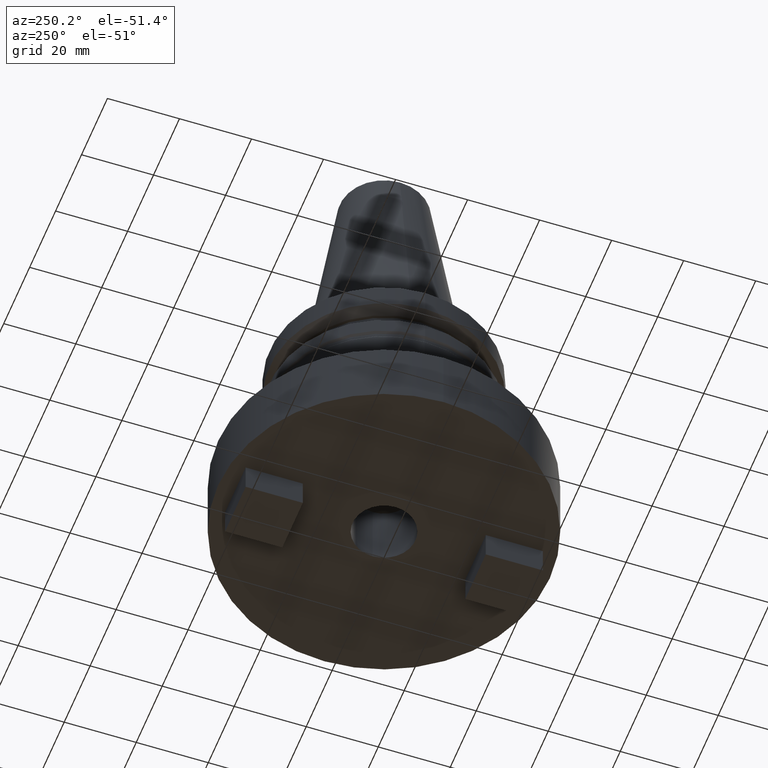
[diagram: clean part render]
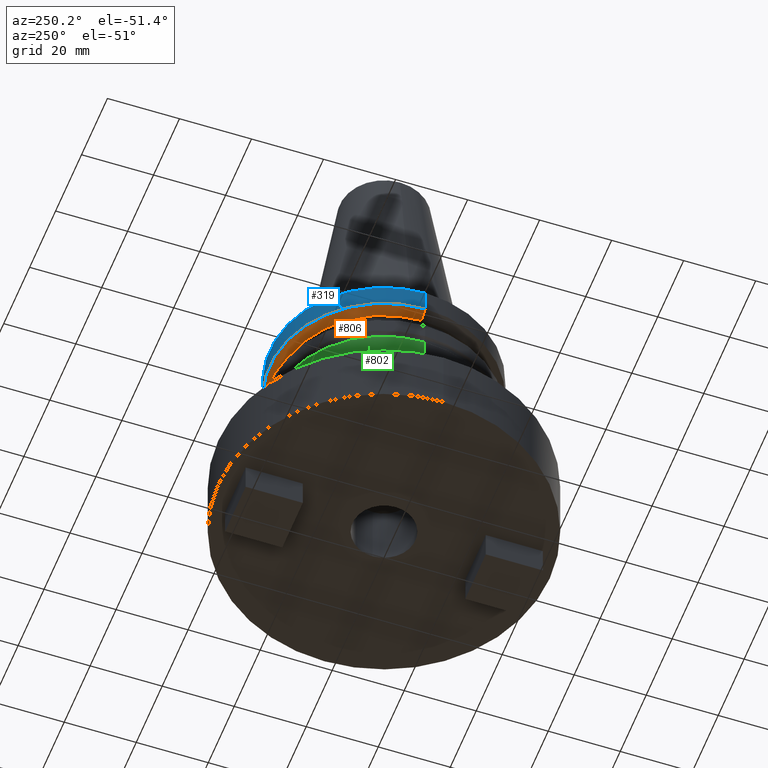
[diagram: same view with three faces highlighted in distinct colors, each labeled with its STEP entity id]
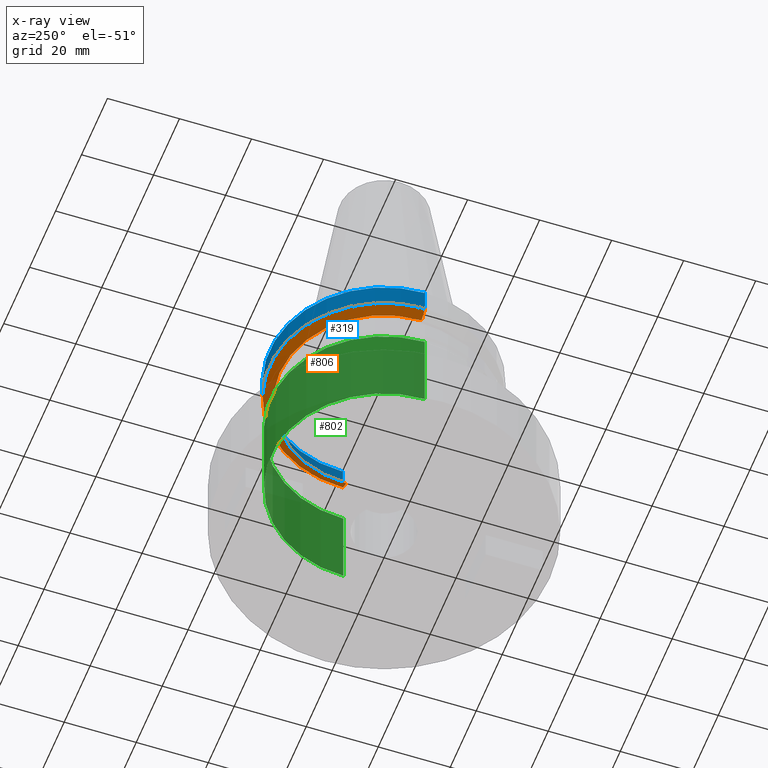
[diagram: x-ray of the same camera — body ghosted, the three highlighted faces saturated]
A machine part, auxiliary view with three faces highlighted in distinct colors.
The next image is the same camera in x-ray (body ghosted, the three faces saturated) — at least one of them is partly hidden behind the body in this view.
Their STEP definitions:

[orange] entity #806 — the highlighted conical surface has half-angle 60 deg.
#25 = ORIENTED_EDGE ( 'NONE', *, *, #1011, .F. ) ;
#44 = VERTEX_POINT ( 'NONE', #203 ) ;
#60 = ORIENTED_EDGE ( 'NONE', *, *, #727, .T. ) ;
#66 = VECTOR ( 'NONE', #826, 1000.000000000000000 ) ;
#104 = ORIENTED_EDGE ( 'NONE', *, *, #837, .T. ) ;
#160 = DIRECTION ( 'NONE',  ( -0.000000000000000000, -0.000000000000000000, 1.000000000000000000 ) ) ;
#177 = CARTESIAN_POINT ( 'NONE',  ( 28.97919780457007732, 0.000000000000000000, -9.205000000000005400 ) ) ;
#187 = CONICAL_SURFACE ( 'NONE', #303, 28.97919780457007732, 1.047197551196598297 ) ;
#203 = CARTESIAN_POINT ( 'NONE',  ( 28.97919780457007732, 0.000000000000000000, -9.205000000000005400 ) ) ;
#222 = CIRCLE ( 'NONE', #576, 28.97919780457007732 ) ;
#248 = DIRECTION ( 'NONE',  ( 1.000000000000000000, 0.000000000000000000, 0.000000000000000000 ) ) ;
#264 = VERTEX_POINT ( 'NONE', #589 ) ;
#303 = AXIS2_PLACEMENT_3D ( 'NONE', #911, #1014, #518 ) ;
#333 = EDGE_LOOP ( 'NONE', ( #104, #60, #773, #25 ) ) ;
#408 = EDGE_CURVE ( 'NONE', #264, #579, #752, .T. ) ;
#518 = DIRECTION ( 'NONE',  ( 1.000000000000000000, 0.000000000000000000, 0.000000000000000000 ) ) ;
#541 = DIRECTION ( 'NONE',  ( -0.000000000000000000, -0.000000000000000000, 1.000000000000000000 ) ) ;
#576 = AXIS2_PLACEMENT_3D ( 'NONE', #620, #541, #248 ) ;
#579 = VERTEX_POINT ( 'NONE', #1140 ) ;
#589 = CARTESIAN_POINT ( 'NONE',  ( 31.75000000000000000, 0.000000000000000000, -7.605276606597335842 ) ) ;
#619 = CARTESIAN_POINT ( 'NONE',  ( 0.000000000000000000, 0.000000000000000000, -7.605276606597335842 ) ) ;
#620 = CARTESIAN_POINT ( 'NONE',  ( 0.000000000000000000, 0.000000000000000000, -9.205000000000005400 ) ) ;
#691 = AXIS2_PLACEMENT_3D ( 'NONE', #619, #160, #905 ) ;
#714 = CARTESIAN_POINT ( 'NONE',  ( -28.97919780457007732, 3.718590885307660666E-15, -9.205000000000005400 ) ) ;
#727 = EDGE_CURVE ( 'NONE', #798, #579, #933, .T. ) ;
#746 = VECTOR ( 'NONE', #1015, 1000.000000000000000 ) ;
#752 = CIRCLE ( 'NONE', #691, 31.75000000000000000 ) ;
#773 = ORIENTED_EDGE ( 'NONE', *, *, #408, .F. ) ;
#798 = VERTEX_POINT ( 'NONE', #714 ) ;
#806 = ADVANCED_FACE ( 'NONE', ( #1093 ), #187, .T. ) ;
#826 = DIRECTION ( 'NONE',  ( 0.8660254037844389297, 0.000000000000000000, 0.4999999999999995004 ) ) ;
#837 = EDGE_CURVE ( 'NONE', #44, #798, #222, .T. ) ;
#905 = DIRECTION ( 'NONE',  ( 1.000000000000000000, 0.000000000000000000, 0.000000000000000000 ) ) ;
#911 = CARTESIAN_POINT ( 'NONE',  ( 0.000000000000000000, 0.000000000000000000, -9.205000000000005400 ) ) ;
#933 = LINE ( 'NONE', #1122, #746 ) ;
#1011 = EDGE_CURVE ( 'NONE', #44, #264, #1022, .T. ) ;
#1014 = DIRECTION ( 'NONE',  ( -0.000000000000000000, -0.000000000000000000, 1.000000000000000000 ) ) ;
#1015 = DIRECTION ( 'NONE',  ( -0.8660254037844389297, 1.060575238724907285E-16, 0.4999999999999995004 ) ) ;
#1022 = LINE ( 'NONE', #177, #66 ) ;
#1093 = FACE_OUTER_BOUND ( 'NONE', #333, .T. ) ;
#1122 = CARTESIAN_POINT ( 'NONE',  ( -28.97919780457007732, 3.548928183322474856E-15, -9.205000000000005400 ) ) ;
#1140 = CARTESIAN_POINT ( 'NONE',  ( -31.75000000000000000, 3.888253587292846476E-15, -7.605276606597335842 ) ) ;

[blue] entity #319 — the highlighted cylindrical surface (partial cylindrical patch) has radius 31.75 mm, axis along (-0, -0, 1).
#32 = CARTESIAN_POINT ( 'NONE',  ( 0.000000000000000000, 0.000000000000000000, -1.000000000000000888 ) ) ;
#49 = DIRECTION ( 'NONE',  ( -0.000000000000000000, -0.000000000000000000, 1.000000000000000000 ) ) ;
#65 = VERTEX_POINT ( 'NONE', #655 ) ;
#68 = FACE_OUTER_BOUND ( 'NONE', #1017, .T. ) ;
#149 = EDGE_CURVE ( 'NONE', #1050, #65, #689, .T. ) ;
#159 = EDGE_CURVE ( 'NONE', #579, #65, #989, .T. ) ;
#160 = DIRECTION ( 'NONE',  ( -0.000000000000000000, -0.000000000000000000, 1.000000000000000000 ) ) ;
#225 = VECTOR ( 'NONE', #420, 1000.000000000000000 ) ;
#264 = VERTEX_POINT ( 'NONE', #589 ) ;
#271 = CARTESIAN_POINT ( 'NONE',  ( 31.75000000000000000, 0.000000000000000000, -1.000000000000000888 ) ) ;
#302 = DIRECTION ( 'NONE',  ( 1.000000000000000000, 0.000000000000000000, 0.000000000000000000 ) ) ;
#304 = VECTOR ( 'NONE', #49, 1000.000000000000000 ) ;
#319 = ADVANCED_FACE ( 'NONE', ( #68 ), #1021, .T. ) ;
#345 = LINE ( 'NONE', #891, #304 ) ;
#408 = EDGE_CURVE ( 'NONE', #264, #579, #752, .T. ) ;
#413 = ORIENTED_EDGE ( 'NONE', *, *, #932, .F. ) ;
#420 = DIRECTION ( 'NONE',  ( -0.000000000000000000, -0.000000000000000000, 1.000000000000000000 ) ) ;
#502 = AXIS2_PLACEMENT_3D ( 'NONE', #32, #884, #302 ) ;
#514 = ORIENTED_EDGE ( 'NONE', *, *, #149, .F. ) ;
#525 = CARTESIAN_POINT ( 'NONE',  ( 0.000000000000000000, 0.000000000000000000, 68.25000000000000000 ) ) ;
#551 = DIRECTION ( 'NONE',  ( 1.000000000000000000, 0.000000000000000000, 0.000000000000000000 ) ) ;
#579 = VERTEX_POINT ( 'NONE', #1140 ) ;
#587 = ORIENTED_EDGE ( 'NONE', *, *, #159, .T. ) ;
#589 = CARTESIAN_POINT ( 'NONE',  ( 31.75000000000000000, 0.000000000000000000, -7.605276606597335842 ) ) ;
#619 = CARTESIAN_POINT ( 'NONE',  ( 0.000000000000000000, 0.000000000000000000, -7.605276606597335842 ) ) ;
#655 = CARTESIAN_POINT ( 'NONE',  ( -31.75000000000000000, 3.888253587292846476E-15, -1.000000000000000888 ) ) ;
#689 = CIRCLE ( 'NONE', #502, 31.75000000000000000 ) ;
#691 = AXIS2_PLACEMENT_3D ( 'NONE', #619, #160, #905 ) ;
#752 = CIRCLE ( 'NONE', #691, 31.75000000000000000 ) ;
#832 = AXIS2_PLACEMENT_3D ( 'NONE', #525, #1171, #551 ) ;
#868 = CARTESIAN_POINT ( 'NONE',  ( -31.75000000000000000, 3.888253587292846476E-15, 68.25000000000000000 ) ) ;
#884 = DIRECTION ( 'NONE',  ( -0.000000000000000000, -0.000000000000000000, 1.000000000000000000 ) ) ;
#891 = CARTESIAN_POINT ( 'NONE',  ( 31.75000000000000000, 0.000000000000000000, 68.25000000000000000 ) ) ;
#905 = DIRECTION ( 'NONE',  ( 1.000000000000000000, 0.000000000000000000, 0.000000000000000000 ) ) ;
#932 = EDGE_CURVE ( 'NONE', #264, #1050, #345, .T. ) ;
#989 = LINE ( 'NONE', #868, #225 ) ;
#1017 = EDGE_LOOP ( 'NONE', ( #1137, #587, #514, #413 ) ) ;
#1021 = CYLINDRICAL_SURFACE ( 'NONE', #832, 31.75000000000000000 ) ;
#1050 = VERTEX_POINT ( 'NONE', #271 ) ;
#1137 = ORIENTED_EDGE ( 'NONE', *, *, #408, .T. ) ;
#1140 = CARTESIAN_POINT ( 'NONE',  ( -31.75000000000000000, 3.888253587292846476E-15, -7.605276606597335842 ) ) ;
#1171 = DIRECTION ( 'NONE',  ( -0.000000000000000000, -0.000000000000000000, 1.000000000000000000 ) ) ;

[green] entity #802 — the highlighted cylindrical surface (partial cylindrical patch) has radius 31.4 mm, axis along (-0, -0, 1).
#41 = DIRECTION ( 'NONE',  ( -0.000000000000000000, -0.000000000000000000, 1.000000000000000000 ) ) ;
#140 = EDGE_CURVE ( 'NONE', #1082, #573, #283, .T. ) ;
#158 = CARTESIAN_POINT ( 'NONE',  ( -31.39999999999999858, 3.845390949322688543E-15, -21.05000000000000071 ) ) ;
#217 = VERTEX_POINT ( 'NONE', #686 ) ;
#254 = DIRECTION ( 'NONE',  ( -1.000000000000000000, 0.000000000000000000, 0.000000000000000000 ) ) ;
#262 = CARTESIAN_POINT ( 'NONE',  ( 0.000000000000000000, 0.000000000000000000, -45.00000000000000000 ) ) ;
#283 = CIRCLE ( 'NONE', #931, 31.39999999999999858 ) ;
#288 = DIRECTION ( 'NONE',  ( -0.000000000000000000, -0.000000000000000000, 1.000000000000000000 ) ) ;
#300 = EDGE_CURVE ( 'NONE', #217, #305, #429, .T. ) ;
#305 = VERTEX_POINT ( 'NONE', #358 ) ;
#324 = VECTOR ( 'NONE', #288, 1000.000000000000000 ) ;
#353 = DIRECTION ( 'NONE',  ( 1.000000000000000000, 0.000000000000000000, 0.000000000000000000 ) ) ;
#358 = CARTESIAN_POINT ( 'NONE',  ( 31.39999999999999858, 0.000000000000000000, -45.00000000000000000 ) ) ;
#370 = CYLINDRICAL_SURFACE ( 'NONE', #633, 31.39999999999999858 ) ;
#429 = CIRCLE ( 'NONE', #581, 31.39999999999999858 ) ;
#432 = DIRECTION ( 'NONE',  ( -0.000000000000000000, -0.000000000000000000, 1.000000000000000000 ) ) ;
#546 = DIRECTION ( 'NONE',  ( 0.000000000000000000, 0.000000000000000000, -1.000000000000000000 ) ) ;
#570 = ORIENTED_EDGE ( 'NONE', *, *, #948, .T. ) ;
#573 = VERTEX_POINT ( 'NONE', #158 ) ;
#581 = AXIS2_PLACEMENT_3D ( 'NONE', #262, #546, #254 ) ;
#633 = AXIS2_PLACEMENT_3D ( 'NONE', #1008, #885, #353 ) ;
#671 = CARTESIAN_POINT ( 'NONE',  ( 0.000000000000000000, 0.000000000000000000, -21.05000000000000071 ) ) ;
#681 = EDGE_CURVE ( 'NONE', #305, #1082, #701, .T. ) ;
#686 = CARTESIAN_POINT ( 'NONE',  ( -31.39999999999999858, 3.845390949322688543E-15, -45.00000000000000000 ) ) ;
#701 = LINE ( 'NONE', #1116, #1090 ) ;
#715 = ORIENTED_EDGE ( 'NONE', *, *, #140, .F. ) ;
#740 = LINE ( 'NONE', #936, #324 ) ;
#781 = ORIENTED_EDGE ( 'NONE', *, *, #681, .F. ) ;
#802 = ADVANCED_FACE ( 'NONE', ( #912 ), #370, .T. ) ;
#862 = CARTESIAN_POINT ( 'NONE',  ( 31.39999999999999858, 0.000000000000000000, -21.05000000000000071 ) ) ;
#879 = DIRECTION ( 'NONE',  ( 1.000000000000000000, 0.000000000000000000, 0.000000000000000000 ) ) ;
#885 = DIRECTION ( 'NONE',  ( -0.000000000000000000, -0.000000000000000000, 1.000000000000000000 ) ) ;
#912 = FACE_OUTER_BOUND ( 'NONE', #1175, .T. ) ;
#931 = AXIS2_PLACEMENT_3D ( 'NONE', #671, #41, #879 ) ;
#936 = CARTESIAN_POINT ( 'NONE',  ( -31.39999999999999858, 3.845390949322688543E-15, 68.25000000000000000 ) ) ;
#948 = EDGE_CURVE ( 'NONE', #217, #573, #740, .T. ) ;
#993 = ORIENTED_EDGE ( 'NONE', *, *, #300, .F. ) ;
#1008 = CARTESIAN_POINT ( 'NONE',  ( 0.000000000000000000, 0.000000000000000000, 68.25000000000000000 ) ) ;
#1082 = VERTEX_POINT ( 'NONE', #862 ) ;
#1090 = VECTOR ( 'NONE', #432, 1000.000000000000000 ) ;
#1116 = CARTESIAN_POINT ( 'NONE',  ( 31.39999999999999858, 0.000000000000000000, 68.25000000000000000 ) ) ;
#1175 = EDGE_LOOP ( 'NONE', ( #993, #570, #715, #781 ) ) ;